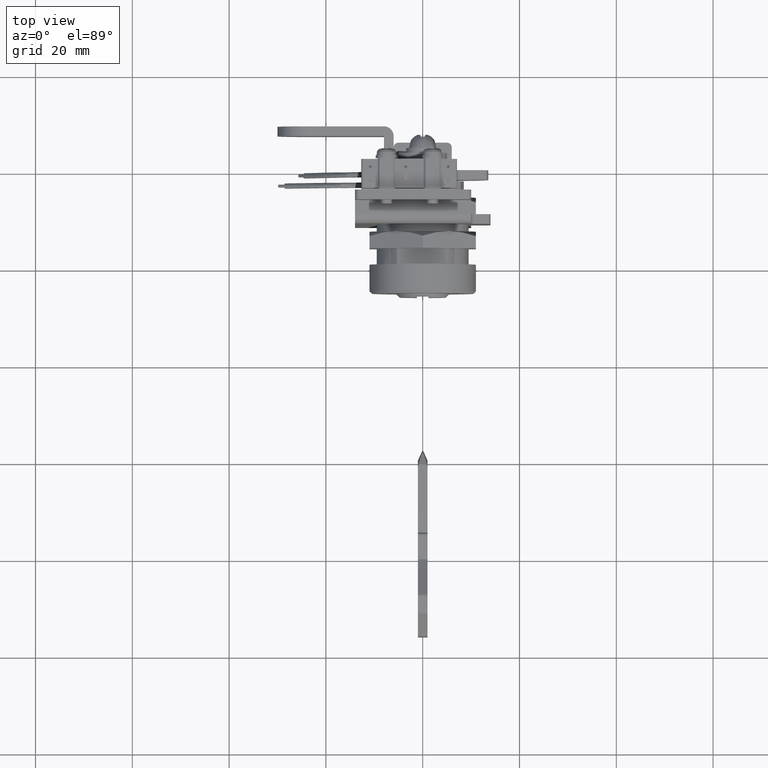
[diagram: clean part render]
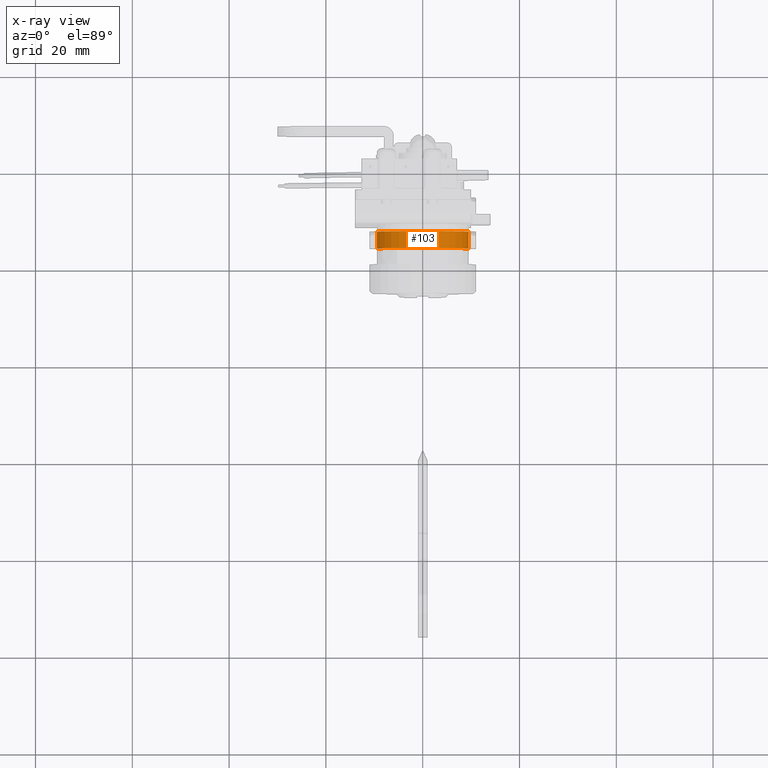
[diagram: x-ray — body ghosted, one internal face saturated and labeled with its STEP entity id]
A machine part, top view, then the same camera in x-ray: the body is ghosted and one INTERNAL B-rep face — a face not visible from any outside direction — is saturated and labeled: STEP entity #103.
In plain terms, the highlighted face is a freeform B-spline surface patch.
Its self-contained STEP definition (entity closure, byte-faithful):
#5=CARTESIAN_POINT('',(9.470714670464712,6.887500000000003,0.745361409408109));
#6=CARTESIAN_POINT('',(8.725353261050179,6.887500000000004,10.216076079872822));
#7=CARTESIAN_POINT('',(-0.745361409414532,6.887500000000003,9.470714670458289));
#8=CARTESIAN_POINT('',(-10.216076079879246,6.887500000000004,8.725353261043756));
#9=CARTESIAN_POINT('',(-9.470714670464712,6.887500000000003,-0.745361409420956));
#10=CARTESIAN_POINT('',(9.470714670464712,3.210312499999997,0.745361409408109));
#11=CARTESIAN_POINT('',(8.725353261050179,3.210312499999996,10.216076079872822));
#12=CARTESIAN_POINT('',(-0.745361409414532,3.210312499999997,9.470714670458289));
#13=CARTESIAN_POINT('',(-10.216076079879246,3.210312499999996,8.725353261043756));
#14=CARTESIAN_POINT('',(-9.470714670464712,3.210312499999997,-0.745361409420956));
#22=(BOUNDED_SURFACE()B_SPLINE_SURFACE(2,1,((#5,#10),(#6,#11),(#7,#12),(#8,#13),(#9,#14)),.UNSPECIFIED.,.F.,.F.,.U.)B_SPLINE_SURFACE_WITH_KNOTS((3,2,3),(2,2),(0.0,15.740115370177611,31.480230740355221),(0.0,3.677187500000006),.UNSPECIFIED.)GEOMETRIC_REPRESENTATION_ITEM()RATIONAL_B_SPLINE_SURFACE(((1.0,1.0),(0.707106781186548,0.707106781186548),(1.0,1.0),(0.707106781186548,0.707106781186548),(1.0,1.0)))REPRESENTATION_ITEM('')SURFACE());
#23=CARTESIAN_POINT('',(4.163662E-016,6.800000000000001,9.499999999993577));
#24=VERTEX_POINT('',#23);
#25=CARTESIAN_POINT('',(9.470714670455003,6.800000000000004,0.745361409531520));
#26=VERTEX_POINT('',#25);
#27=CARTESIAN_POINT('',(4.163662E-016,6.800000000000001,9.499999999993577));
#28=CARTESIAN_POINT('',(8.781709670638175,6.799999999999997,9.499999999993577));
#29=CARTESIAN_POINT('',(9.470714670455003,6.799999999999997,0.745361409531521));
#37=(BOUNDED_CURVE()B_SPLINE_CURVE(2,(#27,#28,#29),.UNSPECIFIED.,.F.,.U.)B_SPLINE_CURVE_WITH_KNOTS((3,3),(0.0,0.236331300630533),.UNSPECIFIED.)CURVE()GEOMETRIC_REPRESENTATION_ITEM()RATIONAL_B_SPLINE_CURVE((1.0,0.723120658607814,0.969723356167154))REPRESENTATION_ITEM(''));
#38=EDGE_CURVE('',#24,#26,#37,.T.);
#39=ORIENTED_EDGE('',*,*,#38,.T.);
#40=CARTESIAN_POINT('',(9.470714670455003,3.300000000000001,0.745361409531520));
#41=VERTEX_POINT('',#40);
#42=CARTESIAN_POINT('',(9.470714670455003,6.800000000000004,0.745361409531520));
#43=CARTESIAN_POINT('',(9.470714670455003,3.300000000000001,0.745361409531520));
#44=QUASI_UNIFORM_CURVE('',1,(#42,#43),.UNSPECIFIED.,.F.,.U.);
#45=EDGE_CURVE('',#26,#41,#44,.T.);
#46=ORIENTED_EDGE('',*,*,#45,.T.);
#47=CARTESIAN_POINT('',(2.020600E-016,3.300000000000001,9.499999999993577));
#48=VERTEX_POINT('',#47);
#49=CARTESIAN_POINT('',(2.020600E-016,3.300000000000001,9.499999999993577));
#50=CARTESIAN_POINT('',(8.781709670638175,3.300000000000002,9.499999999993577));
#51=CARTESIAN_POINT('',(9.470714670455003,3.300000000000008,0.745361409531521));
#59=(BOUNDED_CURVE()B_SPLINE_CURVE(2,(#49,#50,#51),.UNSPECIFIED.,.F.,.U.)B_SPLINE_CURVE_WITH_KNOTS((3,3),(0.0,0.236331300630533),.UNSPECIFIED.)CURVE()GEOMETRIC_REPRESENTATION_ITEM()RATIONAL_B_SPLINE_CURVE((1.0,0.723120658607814,0.969723356167154))REPRESENTATION_ITEM(''));
#60=EDGE_CURVE('',#48,#41,#59,.T.);
#61=ORIENTED_EDGE('',*,*,#60,.F.);
#62=CARTESIAN_POINT('',(-9.470714670455003,3.300000000000001,-0.745361409544366));
#63=VERTEX_POINT('',#62);
#64=CARTESIAN_POINT('',(-9.470714670455003,3.300000000000008,-0.745361409544367));
#65=CARTESIAN_POINT('',(-9.500000000000000,3.300000000000004,-0.373256016641280));
#66=CARTESIAN_POINT('',(-9.500000000000000,3.300000000000001,-6.423306E-012));
#67=CARTESIAN_POINT('',(-9.500000000000000,3.300000000000002,9.499999999993577));
#68=CARTESIAN_POINT('',(2.020600E-016,3.300000000000001,9.499999999993577));
#76=(BOUNDED_CURVE()B_SPLINE_CURVE(2,(#64,#65,#66,#67,#68),.UNSPECIFIED.,.F.,.U.)B_SPLINE_CURVE_WITH_KNOTS((3,2,3),(0.736331300630533,0.750000000000000,1.0),.UNSPECIFIED.)CURVE()GEOMETRIC_REPRESENTATION_ITEM()RATIONAL_B_SPLINE_CURVE((0.969723356167154,0.983986122578734,1.0,0.707106781186548,1.0))REPRESENTATION_ITEM(''));
#77=EDGE_CURVE('',#63,#48,#76,.T.);
#78=ORIENTED_EDGE('',*,*,#77,.F.);
#79=CARTESIAN_POINT('',(-9.470714670454999,6.799999999999997,-0.745361409544369));
#80=VERTEX_POINT('',#79);
#81=CARTESIAN_POINT('',(-9.470714670454999,6.799999999999997,-0.745361409544369));
#82=CARTESIAN_POINT('',(-9.470714670455003,3.300000000000001,-0.745361409544366));
#83=QUASI_UNIFORM_CURVE('',1,(#81,#82),.UNSPECIFIED.,.F.,.U.);
#84=EDGE_CURVE('',#80,#63,#83,.T.);
#85=ORIENTED_EDGE('',*,*,#84,.F.);
#86=CARTESIAN_POINT('',(-9.470714670455003,6.799999999999997,-0.745361409544367));
#87=CARTESIAN_POINT('',(-9.500000000000000,6.800000000000001,-0.373256016641280));
#88=CARTESIAN_POINT('',(-9.500000000000000,6.800000000000001,-6.423306E-012));
#89=CARTESIAN_POINT('',(-9.500000000000000,6.800000000000002,9.499999999993577));
#90=CARTESIAN_POINT('',(4.163662E-016,6.800000000000001,9.499999999993577));
#98=(BOUNDED_CURVE()B_SPLINE_CURVE(2,(#86,#87,#88,#89,#90),.UNSPECIFIED.,.F.,.U.)B_SPLINE_CURVE_WITH_KNOTS((3,2,3),(0.736331300630533,0.750000000000000,1.0),.UNSPECIFIED.)CURVE()GEOMETRIC_REPRESENTATION_ITEM()RATIONAL_B_SPLINE_CURVE((0.969723356167154,0.983986122578734,1.0,0.707106781186548,1.0))REPRESENTATION_ITEM(''));
#99=EDGE_CURVE('',#80,#24,#98,.T.);
#100=ORIENTED_EDGE('',*,*,#99,.T.);
#101=EDGE_LOOP('',(#39,#46,#61,#78,#85,#100));
#102=FACE_OUTER_BOUND('',#101,.T.);
#103=ADVANCED_FACE('',(#102),#22,.F.);